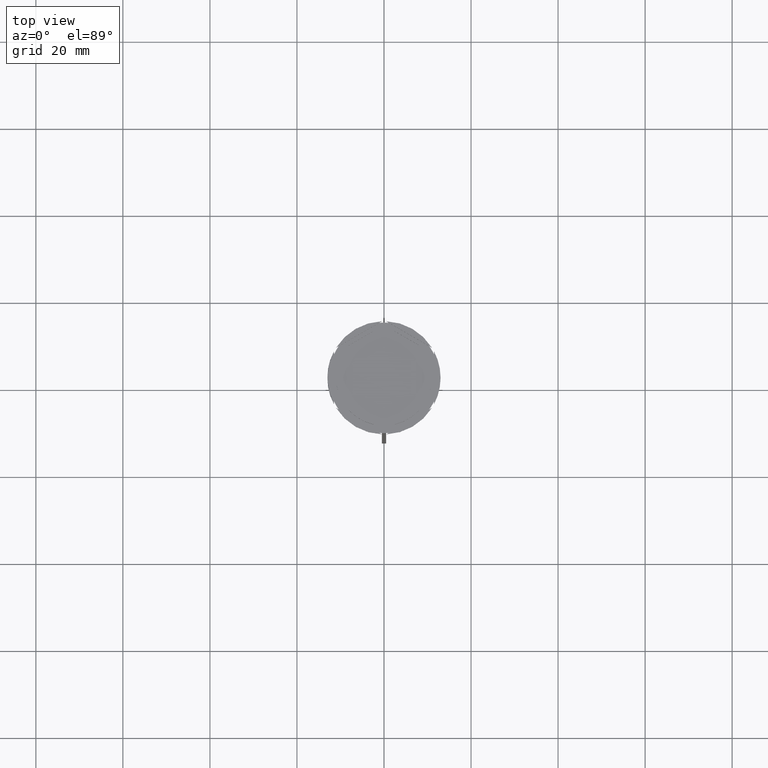
[diagram: clean part render]
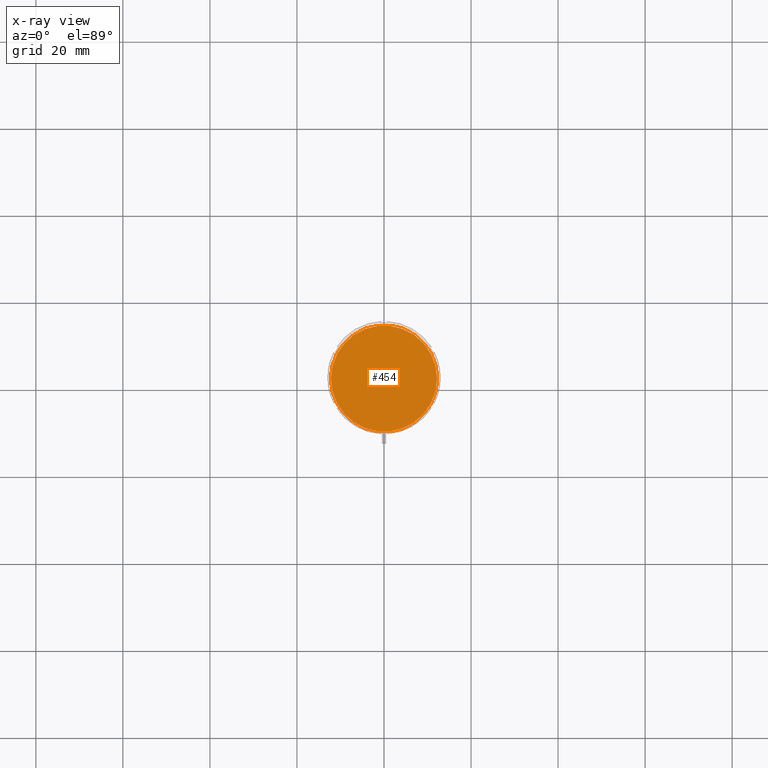
[diagram: x-ray — body ghosted, one internal face saturated and labeled with its STEP entity id]
A machine part, top view, then the same camera in x-ray: the body is ghosted and one INTERNAL B-rep face — a face not visible from any outside direction — is saturated and labeled: STEP entity #454.
In plain terms, the highlighted planar face has unit normal (0, 0, -1).
Its self-contained STEP definition (entity closure, byte-faithful):
#222 = ORIENTED_EDGE ( 'NONE', *, *, #528, .T. ) ;
#287 = DIRECTION ( 'NONE',  ( 0.000000000000000000, 0.000000000000000000, -1.000000000000000000 ) ) ;
#410 = EDGE_CURVE ( 'NONE', #1721, #2639, #2098, .T. ) ;
#454 = ADVANCED_FACE ( 'NONE', ( #463 ), #2794, .F. ) ;
#463 = FACE_OUTER_BOUND ( 'NONE', #1581, .T. ) ;
#518 = AXIS2_PLACEMENT_3D ( 'NONE', #963, #568, #1840 ) ;
#528 = EDGE_CURVE ( 'NONE', #2639, #1721, #652, .T. ) ;
#568 = DIRECTION ( 'NONE',  ( -0.000000000000000000, -0.000000000000000000, 1.000000000000000000 ) ) ;
#652 = CIRCLE ( 'NONE', #518, 12.20000000000000639 ) ;
#826 = CARTESIAN_POINT ( 'NONE',  ( 12.20000000000000639, 1.512438796946981880E-15, -12.00000000000000000 ) ) ;
#838 = AXIS2_PLACEMENT_3D ( 'NONE', #1948, #1522, #2175 ) ;
#858 = DIRECTION ( 'NONE',  ( -1.000000000000000000, 0.000000000000000000, -0.000000000000000000 ) ) ;
#963 = CARTESIAN_POINT ( 'NONE',  ( 0.000000000000000000, 0.000000000000000000, -12.00000000000000000 ) ) ;
#1317 = CARTESIAN_POINT ( 'NONE',  ( 0.000000000000000000, 0.000000000000000000, -12.00000000000000000 ) ) ;
#1405 = ORIENTED_EDGE ( 'NONE', *, *, #410, .T. ) ;
#1433 = CARTESIAN_POINT ( 'NONE',  ( -12.20000000000000639, 0.000000000000000000, -12.00000000000000000 ) ) ;
#1522 = DIRECTION ( 'NONE',  ( -0.000000000000000000, -0.000000000000000000, 1.000000000000000000 ) ) ;
#1581 = EDGE_LOOP ( 'NONE', ( #1405, #222 ) ) ;
#1599 = AXIS2_PLACEMENT_3D ( 'NONE', #1317, #287, #858 ) ;
#1721 = VERTEX_POINT ( 'NONE', #1433 ) ;
#1840 = DIRECTION ( 'NONE',  ( -1.000000000000000000, 0.000000000000000000, 0.000000000000000000 ) ) ;
#1948 = CARTESIAN_POINT ( 'NONE',  ( 0.000000000000000000, 0.000000000000000000, -12.00000000000000000 ) ) ;
#2098 = CIRCLE ( 'NONE', #838, 12.20000000000000639 ) ;
#2175 = DIRECTION ( 'NONE',  ( -1.000000000000000000, 0.000000000000000000, 0.000000000000000000 ) ) ;
#2639 = VERTEX_POINT ( 'NONE', #826 ) ;
#2794 = PLANE ( 'NONE',  #1599 ) ;